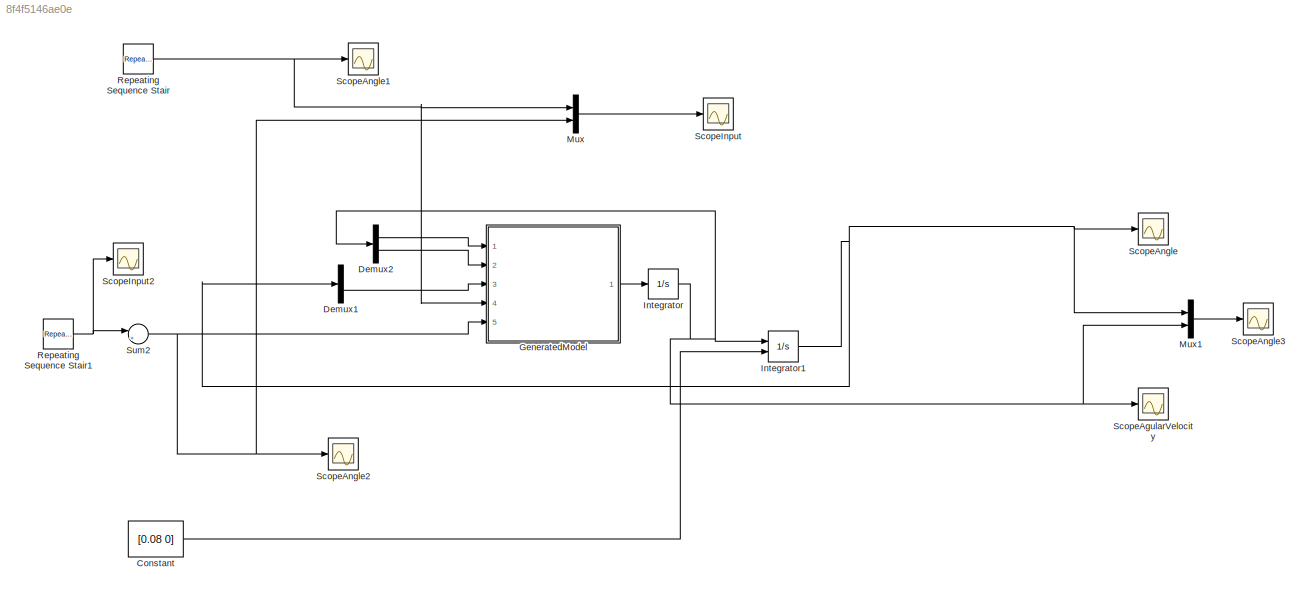
MODEL slx_8f4f5146ae0e
KIND model
BLOCK [Constant] Constant
  Value = [0.08 0]
BLOCK [Demux] Demux1
  DisplayOption = bar
  Outputs = 2
  Ports = [1, 2]
BLOCK [Demux] Demux2
  DisplayOption = bar
  Outputs = 2
  Ports = [1, 2]
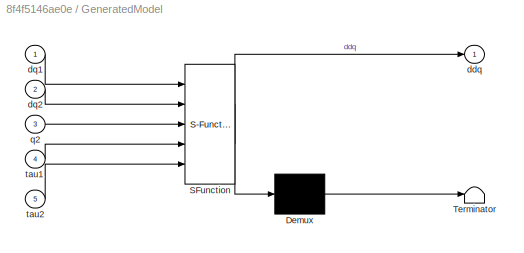
BLOCK [SubSystem] GeneratedModel
  ErrorFcn = Stateflow.Translate.translate
  PermitHierarchicalResolution = ExplicitOnly
  Ports = [5, 1]
  RequestExecContextInheritance = off
  SFBlockType = MATLAB Function
  TreatAsAtomicUnit = on
BLOCK [Demux] GeneratedModel/ Demux 
  Outputs = 1
  Ports = [1, 1]
BLOCK [S-Function] GeneratedModel/ SFunction 
  EnableBusSupport = on
  FunctionName = sf_sfun
  PortCounts = [5 2]
  Ports = [5, 2]
  Tag = Stateflow S-Function GeneratedModelTestMyInput 2
BLOCK [Terminator] GeneratedModel/ Terminator 
BLOCK [Outport] GeneratedModel/ddq
  IconDisplay = Port number
BLOCK [Inport] GeneratedModel/dq1
  IconDisplay = Port number
BLOCK [Inport] GeneratedModel/dq2
  IconDisplay = Port number
  Port = 2
BLOCK [Inport] GeneratedModel/q2
  IconDisplay = Port number
  Port = 3
BLOCK [Inport] GeneratedModel/tau1
  IconDisplay = Port number
  Port = 4
BLOCK [Inport] GeneratedModel/tau2
  IconDisplay = Port number
  Port = 5
BLOCK [Integrator] Integrator
  InitialCondition = [0 0]
  Ports = [1, 1]
BLOCK [Integrator] Integrator1
  InitialCondition = [0 pi-0.1 0.1]
  InitialConditionSource = external
  Ports = [2, 1]
BLOCK [Mux] Mux
  DisplayOption = bar
  Inputs = 2
  Ports = [2, 1]
BLOCK [Mux] Mux1
  DisplayOption = bar
  Inputs = 2
  Ports = [2, 1]
BLOCK [Reference] Repeating Sequence Stair  REF=simulink/Sources/Repeating
Sequence
Stair
  ConRadixGroup = Best Precision: Vector-wise
  LockScale = off
  OutDataType = fixdt(0,8)
  OutDataTypeStr = double
  OutMax = []
  OutMin = []
  OutScaling = 2^-12
  OutValues = Input1
  OutputDataTypeScalingMode = double
  Ports = [0, 1]
  SourceBlock = simulink/Sources/Repeating\nSequence\nStair
  SourceType = Repeating Sequence Stair
  tsamp = 1/140
BLOCK [Reference] Repeating Sequence Stair1  REF=simulink/Sources/Repeating
Sequence
Stair
  ConRadixGroup = Best Precision: Vector-wise
  LockScale = off
  OutDataType = fixdt(0,8)
  OutDataTypeStr = double
  OutMax = []
  OutMin = []
  OutScaling = 2^-12
  OutValues = Input2
  OutputDataTypeScalingMode = double
  Ports = [0, 1]
  SourceBlock = simulink/Sources/Repeating\nSequence\nStair
  SourceType = Repeating Sequence Stair
  tsamp = 1/140
BLOCK [Scope] ScopeAgularVelocity
  DataFormat = StructureWithTime
  Floating = off
  LimitDataPoints = off
  NumInputPorts = 1
  Ports = [1]
  SaveName = jointVelocity
  SaveToWorkspace = on
  ShowLegends = off
  TimeRange = 10
  YMax = 30
  YMin = -40
BLOCK [Scope] ScopeAngle
  DataFormat = StructureWithTime
  Floating = off
  LimitDataPoints = off
  NumInputPorts = 1
  Ports = [1]
  SaveName = jointAngles
  SaveToWorkspace = on
  ShowLegends = off
  TimeRange = 10
  YMin = 0
BLOCK [Scope] ScopeAngle1
  DataFormat = StructureWithTime
  Floating = off
  LimitDataPoints = off
  NumInputPorts = 1
  Ports = [1]
  SaveName = jointAngles1
  SaveToWorkspace = on
  ShowLegends = off
  TimeRange = 10
  YMin = 0
BLOCK [Scope] ScopeAngle2
  DataFormat = StructureWithTime
  Floating = off
  LimitDataPoints = off
  NumInputPorts = 1
  Ports = [1]
  SaveName = jointAngles2
  SaveToWorkspace = on
  ShowLegends = off
  TimeRange = 10
  YMin = 0
BLOCK [Scope] ScopeAngle3
  DataFormat = StructureWithTime
  Floating = off
  LimitDataPoints = off
  NumInputPorts = 1
  Ports = [1]
  SaveName = SimulationStates
  SaveToWorkspace = on
  ShowLegends = off
  TimeRange = 10
  YMin = 0
BLOCK [Scope] ScopeInput
  DataFormat = StructureWithTime
  Floating = off
  LimitDataPoints = off
  NumInputPorts = 1
  Ports = [1]
  SaveName = jointInput
  SaveToWorkspace = on
  ShowLegends = off
  TimeRange = 10
  YMin = 0
BLOCK [Scope] ScopeInput2
  DataFormat = StructureWithTime
  Floating = off
  LimitDataPoints = off
  NumInputPorts = 1
  Ports = [1]
  SaveName = inputT2
  SaveToWorkspace = on
  ShowLegends = off
  TimeRange = 10
  YMin = 0
BLOCK [Sum] Sum2
  IconShape = round
  InputSameDT = off
  Inputs = |++
  OutDataTypeStr = Inherit: Inherit via internal rule
  Ports = [2, 1]
  SaturateOnIntegerOverflow = off
LINE Constant:1 -> Integrator1:2
LINE Demux1:2 -> GeneratedModel:3
LINE Demux2:1 -> GeneratedModel:1
LINE Demux2:2 -> GeneratedModel:2
LINE GeneratedModel:1 -> Integrator:1
NET Integrator1:1 -> Demux1:1, Mux1:1, ScopeAngle:1
NET Integrator:1 -> Demux2:1, Integrator1:1, Mux1:2, ScopeAgularVelocity:1
LINE Mux1:1 -> ScopeAngle3:1
LINE Mux:1 -> ScopeInput:1
NET Repeating Sequence Stair1:1 -> ScopeInput2:1, Sum2:1
NET Repeating Sequence Stair:1 -> GeneratedModel:4, Mux:1, ScopeAngle1:1
NET Sum2:1 -> GeneratedModel:5, Mux:2, ScopeAngle2:1
note: NET lines group one-source signal fan-out (src -> all destinations, sorted); 1:1 wires keep LINE
CHART GeneratedModel states=1 transitions=1
  STATE_LABEL 'eML_blk_kernel()'
  STATE_LABEL 'SCRIPT:\nfunction ddq = GeneratedModel(dq1,dq2,q2,tau1,tau2)\n%#codegen\n\n%    This function was generated by the Symbolic Math Toolbox version 6.1.\n%    19-Oct-2016 14:27:05\n\nt2 = cos(q2);\nt3 = t2.*1.899099681086028e17;\nt4 = t2.^2;\nt5 = t4.*1.164543691243047e17;\nt6 = t3+t5+1.05575770741716e17;\nt7 = 1.0./t6;\nt8 = q2.*2.0;\nt9 = sin(t8);\nt10 = sin(q2);\nddq = [-dq1.*(t7.*6.935975771714791e18-dq2.*t7.*(t...<+197ch>'
